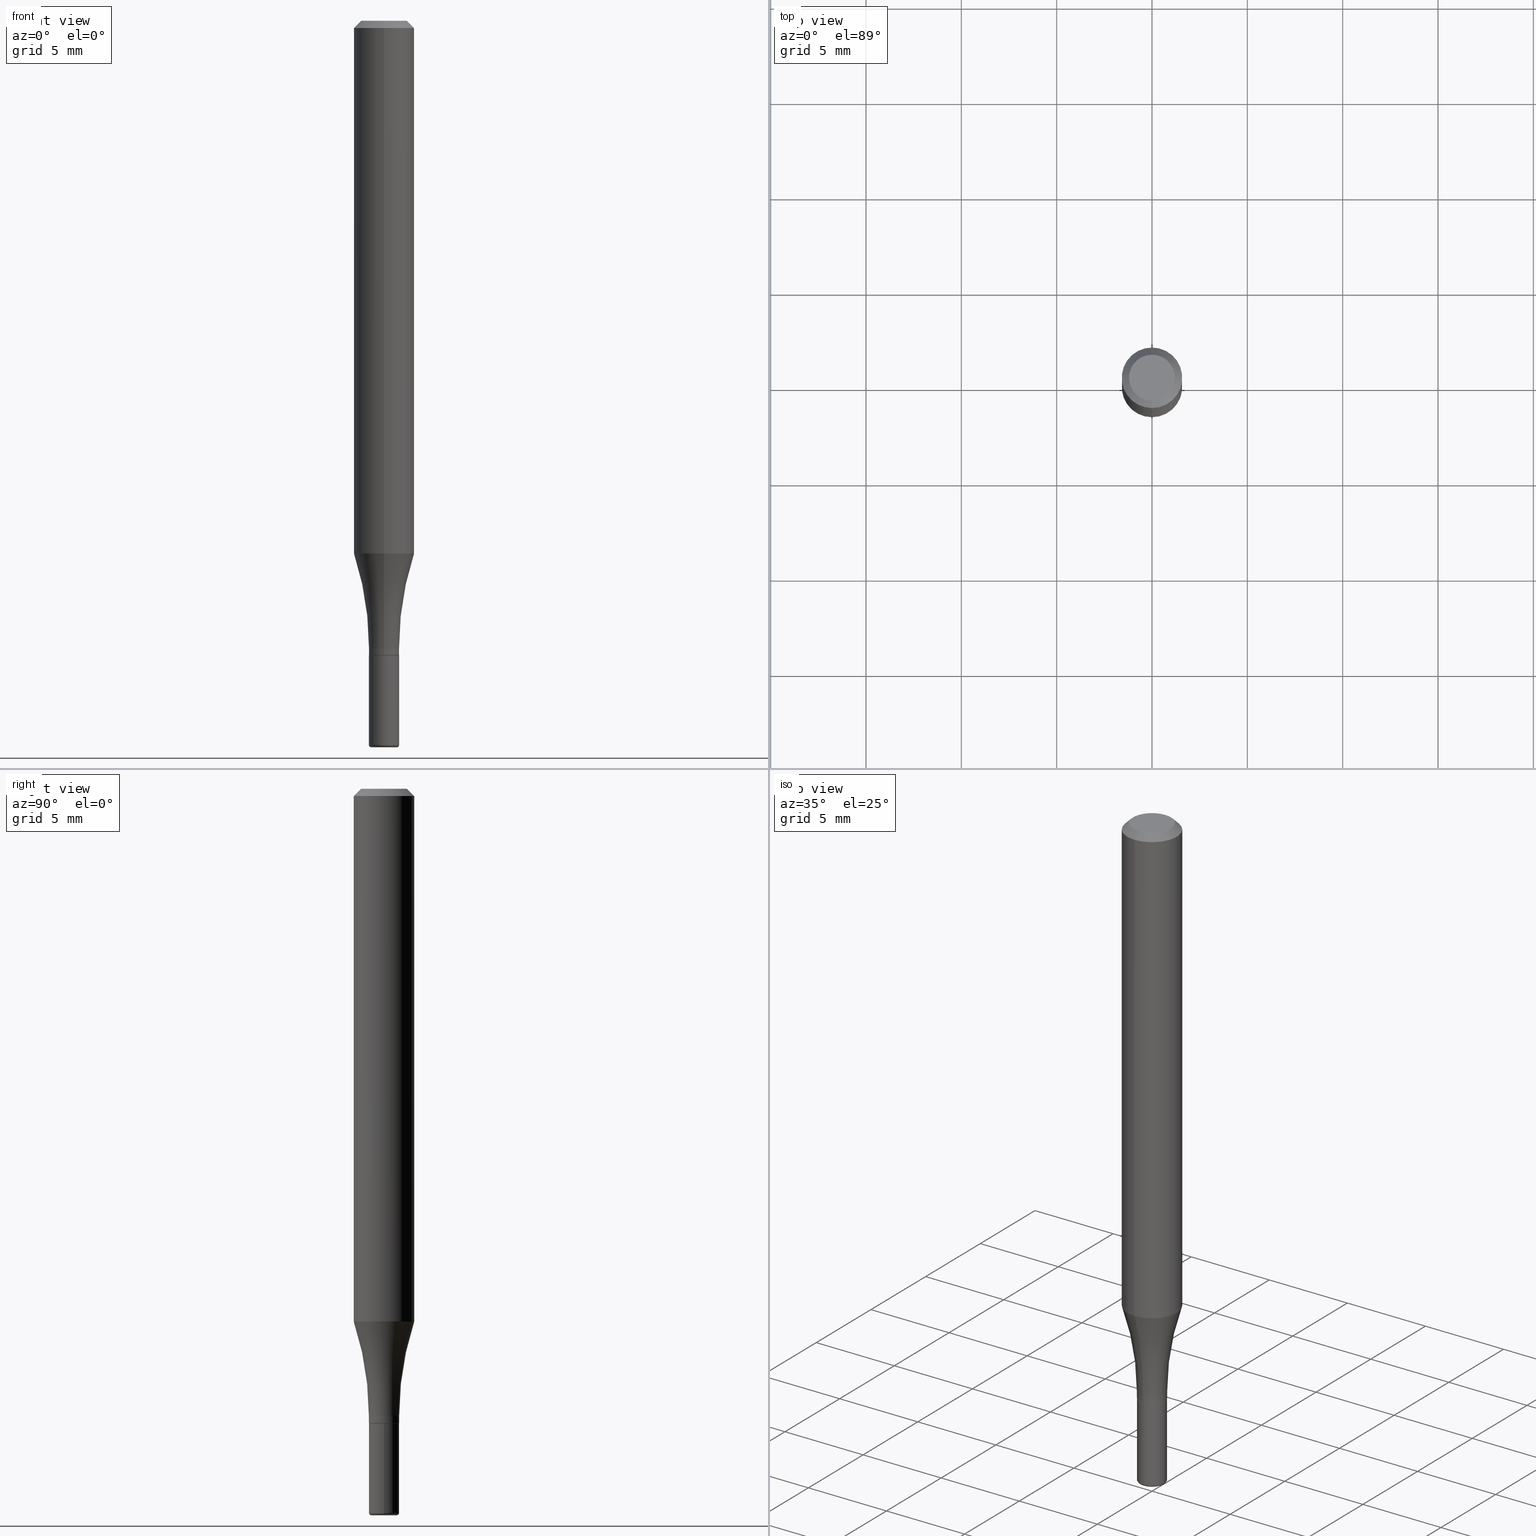
[diagram: canonical four-view strip — front | top / right | iso, engineering-drawing reading convention]
A machine part, canonical four-view strip (front | top / right | iso — engineering-drawing reading convention). The complete STEP part file that produces these views, byte-faithful:
ISO-10303-21;
HEADER;
FILE_DESCRIPTION (( 'STEP AP203' ),
    '1' );
FILE_NAME ('36872.STEP',
    '2024-02-29T19:32:55',
    ( '' ),
    ( '' ),
    'SwSTEP 2.0',
    'SolidWorks 2023',
    '' );
FILE_SCHEMA (( 'CONFIG_CONTROL_DESIGN' ));
ENDSEC;

DATA;
#1 = EDGE_CURVE ( 'NONE', #476, #91, #473, .T. ) ;
#2 = CIRCLE ( 'NONE', #360, 0.004999999999999895153 ) ;
#3 = DIRECTION ( 'NONE',  ( 7.105427357601001859E-15, 1.000000000000000000, -3.491481338843145583E-15 ) ) ;
#4 = EDGE_CURVE ( 'NONE', #116, #347, #269, .T. ) ;
#5 = APPROVAL_ROLE ( '' ) ;
#6 = CARTESIAN_POINT ( 'NONE',  ( 0.000000000000000000, 0.000000000000000000, 0.000000000000000000 ) ) ;
#7 = CARTESIAN_POINT ( 'NONE',  ( -2.147261023388199666E-16, -0.03075000000000447514, -1.310000000000000053 ) ) ;
#8 = APPLICATION_PROTOCOL_DEFINITION ( 'international standard', 'config_control_design', 1994, #433 ) ;
#9 = DIRECTION ( 'NONE',  ( -6.982962677686265922E-15, -1.000000000000000000, 3.497508036328499221E-15 ) ) ;
#10 = CARTESIAN_POINT ( 'NONE',  ( 3.655975865246779122E-29, -5.219764601570503141E-15, -1.495000000000000107 ) ) ;
#11 = VECTOR ( 'NONE', #280, 39.37007874015748143 ) ;
#12 = APPROVAL_PERSON_ORGANIZATION ( #374, #178, #335 ) ;
#13 = APPROVAL_STATUS ( 'not_yet_approved' ) ;
#14 = CARTESIAN_POINT ( 'NONE',  ( 2.685005130172230047E-29, -3.846712573099973362E-15, -1.099843812550049149 ) ) ;
#15 = DIRECTION ( 'NONE',  ( 1.000000000000000000, -6.982962677686264344E-15, 4.883557194083112340E-29 ) ) ;
#16 = MANIFOLD_SOLID_BREP ( 'Body-Move/Copy2[2]', #185 ) ;
#17 = APPROVAL_DATE_TIME ( #259, #178 ) ;
#18 = DIRECTION ( 'NONE',  ( -2.445468806185136597E-29, 3.491481338843145583E-15, 1.000000000000000000 ) ) ;
#19 = CALENDAR_DATE ( 2024, 29, 2 ) ;
#20 = ADVANCED_FACE ( 'NONE', ( #172 ), #196, .T. ) ;
#21 = ORIENTED_EDGE ( 'NONE', *, *, #435, .T. ) ;
#22 = DIRECTION ( 'NONE',  ( 1.000000000000000000, -6.982962677686266711E-15, 4.876176775795936353E-29 ) ) ;
#23 = CALENDAR_DATE ( 2024, 29, 2 ) ;
#24 = CIRCLE ( 'NONE', #458, 0.03124999999999985428 ) ;
#25 = VERTEX_POINT ( 'NONE', #7 ) ;
#26 = DIRECTION ( 'NONE',  ( -6.982962677686265922E-15, -1.000000000000000000, 3.483106191921935554E-15 ) ) ;
#27 = ORIENTED_EDGE ( 'NONE', *, *, #516, .T. ) ;
#28 = CARTESIAN_POINT ( 'NONE',  ( 3.330669073875756569E-16, 0.03124999999999531625, -1.294999999999999707 ) ) ;
#29 = ADVANCED_FACE ( 'NONE', ( #329 ), #78, .T. ) ;
#30 = EDGE_LOOP ( 'NONE', ( #307, #266, #21, #107 ) ) ;
#31 = DIRECTION ( 'NONE',  ( -2.441260385824143346E-29, 3.497508036328499221E-15, 1.000000000000000000 ) ) ;
#32 = TOROIDAL_SURFACE ( 'NONE', #322, 0.02624999999999995740, 0.004999999999999895153 ) ;
#33 = CC_DESIGN_APPROVAL ( #416, ( #82 ) ) ;
#34 = VERTEX_POINT ( 'NONE', #130 ) ;
#35 = PERSON ( 'UNSPECIFIED', 'UNSPECIFIED', 'UNSPECIFIED', ('UNSPECIFIED'), ('UNSPECIFIED'), ('UNSPECIFIED') ) ;
#36 = ORIENTED_EDGE ( 'NONE', *, *, #221, .F. ) ;
#37 = ADVANCED_FACE ( 'NONE', ( #176 ), #398, .T. ) ;
#38 = DIRECTION ( 'NONE',  ( 6.982962677686265922E-15, 1.000000000000000000, -3.497508036328499221E-15 ) ) ;
#39 = CARTESIAN_POINT ( 'NONE',  ( 3.203564136102528897E-29, -4.573840553884520788E-15, -1.310000000000000053 ) ) ;
#40 = CONICAL_SURFACE ( 'NONE', #402, 0.06250000000000000000, 0.7853981633974488341 ) ;
#41 = ORIENTED_EDGE ( 'NONE', *, *, #65, .T. ) ;
#42 = LINE ( 'NONE', #287, #11 ) ;
#43 = EDGE_CURVE ( 'NONE', #390, #25, #466, .T. ) ;
#44 = ORIENTED_EDGE ( 'NONE', *, *, #242, .F. ) ;
#45 = CARTESIAN_POINT ( 'NONE',  ( -2.182175836776631463E-16, -0.03125000000000437150, -1.294999999999999707 ) ) ;
#46 = CARTESIAN_POINT ( 'NONE',  ( 2.220446049250303713E-16, 0.03124999999999987163, -1.092971261352651692E-16 ) ) ;
#47 = AXIS2_PLACEMENT_3D ( 'NONE', #427, #267, #71 ) ;
#48 = APPROVAL_PERSON_ORGANIZATION ( #174, #134, #5 ) ;
#49 = PERSON_AND_ORGANIZATION ( #35, #232 ) ;
#50 = DIRECTION ( 'NONE',  ( -2.441260385824143346E-29, 3.497508036328499221E-15, 1.000000000000000000 ) ) ;
#51 = APPLICATION_PROTOCOL_DEFINITION ( 'international standard', 'config_control_design', 1994, #406 ) ;
#52 = CARTESIAN_POINT ( 'NONE',  ( -4.287811248607203282E-16, -0.06250000000000005551, -0.01499999999999948597 ) ) ;
#53 =( NAMED_UNIT ( * ) PLANE_ANGLE_UNIT ( ) SI_UNIT ( $, .RADIAN. ) );
#54 = DIRECTION ( 'NONE',  ( -2.445468806185136877E-29, 3.491481338843145188E-15, 1.000000000000000000 ) ) ;
#55 = DIRECTION ( 'NONE',  ( 6.982962677686265922E-15, 1.000000000000000000, -3.483106191921935554E-15 ) ) ;
#56 = EDGE_CURVE ( 'NONE', #207, #397, #411, .T. ) ;
#57 = CIRCLE ( 'NONE', #387, 0.03124999999999985428 ) ;
#58 = CARTESIAN_POINT ( 'NONE',  ( 0.000000000000000000, 0.000000000000000000, 0.000000000000000000 ) ) ;
#59 = CARTESIAN_POINT ( 'NONE',  ( 3.668203209277704335E-29, -5.237222008264717388E-15, -1.499999999999999778 ) ) ;
#60 = SHAPE_DEFINITION_REPRESENTATION ( #206, #460 ) ;
#61 = CARTESIAN_POINT ( 'NONE',  ( 4.440892098500627148E-16, 0.06250000000000001388, -2.185942522705312752E-16 ) ) ;
#62 = EDGE_CURVE ( 'NONE', #207, #150, #443, .T. ) ;
#63 = FACE_OUTER_BOUND ( 'NONE', #165, .T. ) ;
#64 = AXIS2_PLACEMENT_3D ( 'NONE', #6, #136, #22 ) ;
#65 = EDGE_CURVE ( 'NONE', #284, #34, #73, .T. ) ;
#66 = ORIENTED_EDGE ( 'NONE', *, *, #191, .F. ) ;
#67 = DIRECTION ( 'NONE',  ( -2.441260385824143346E-29, 3.497508036328499615E-15, 1.000000000000000000 ) ) ;
#68 = PERSON_AND_ORGANIZATION_ROLE ( 'classification_officer' ) ;
#69 = VERTEX_POINT ( 'NONE', #28 ) ;
#70 = DIRECTION ( 'NONE',  ( 1.000000000000000000, -6.982962677686284854E-15, 0.000000000000000000 ) ) ;
#71 = DIRECTION ( 'NONE',  ( 1.000000000000000000, -6.982962677686266711E-15, 4.876176775795936353E-29 ) ) ;
#72 = ORIENTED_EDGE ( 'NONE', *, *, #346, .T. ) ;
#73 = CIRCLE ( 'NONE', #407, 0.06250000000000002776 ) ;
#74 = ADVANCED_FACE ( 'NONE', ( #63 ), #308, .T. ) ;
#75 = LINE ( 'NONE', #83, #237 ) ;
#76 = ORIENTED_EDGE ( 'NONE', *, *, #65, .F. ) ;
#77 = DIRECTION ( 'NONE',  ( -2.441260385824143346E-29, 3.497508036328499615E-15, 1.000000000000000000 ) ) ;
#78 = CONICAL_SURFACE ( 'NONE', #84, 0.03074999999999989547, 0.7853981633972775267 ) ;
#79 = ORIENTED_EDGE ( 'NONE', *, *, #379, .T. ) ;
#80 = DIRECTION ( 'NONE',  ( -6.982962677686265922E-15, -1.000000000000000000, 0.000000000000000000 ) ) ;
#81 = CC_DESIGN_PERSON_AND_ORGANIZATION_ASSIGNMENT ( #49, #208, ( #343 ) ) ;
#82 = SECURITY_CLASSIFICATION ( '', '', #152 ) ;
#83 = CARTESIAN_POINT ( 'NONE',  ( -0.03124999999999989592, 2.220446049250305685E-16, -1.537167215704652977E-30 ) ) ;
#84 = AXIS2_PLACEMENT_3D ( 'NONE', #215, #378, #262 ) ;
#85 = EDGE_LOOP ( 'NONE', ( #464, #27, #66, #507 ) ) ;
#86 = FACE_OUTER_BOUND ( 'NONE', #155, .T. ) ;
#87 = APPROVAL_DATE_TIME ( #338, #134 ) ;
#88 = PLANE ( 'NONE',  #131 ) ;
#89 = CIRCLE ( 'NONE', #186, 0.03124999999999984734 ) ;
#90 = CC_DESIGN_DATE_AND_TIME_ASSIGNMENT ( #305, #101, ( #82 ) ) ;
#91 = VERTEX_POINT ( 'NONE', #352 ) ;
#92 = CARTESIAN_POINT ( 'NONE',  ( 3.840629472727447874E-16, 0.04750000000000000749, 1.073394357713768884E-16 ) ) ;
#93 = DIRECTION ( 'NONE',  ( -2.441260385824143346E-29, 3.497508036328499615E-15, 1.000000000000000000 ) ) ;
#94 = ORIENTED_EDGE ( 'NONE', *, *, #425, .T. ) ;
#95 = CALENDAR_DATE ( 2024, 29, 2 ) ;
#96 = FACE_OUTER_BOUND ( 'NONE', #189, .T. ) ;
#97 = DIRECTION ( 'NONE',  ( -2.445468806185136597E-29, 3.491481338843145583E-15, 1.000000000000000000 ) ) ;
#98 = CIRCLE ( 'NONE', #432, 0.03074999999999989547 ) ;
#99 = AXIS2_PLACEMENT_3D ( 'NONE', #199, #158, #161 ) ;
#100 = LINE ( 'NONE', #61, #148 ) ;
#101 = DATE_TIME_ROLE ( 'classification_date' ) ;
#102 = ORIENTED_EDGE ( 'NONE', *, *, #516, .F. ) ;
#103 = DIRECTION ( 'NONE',  ( -6.982962677686265922E-15, -1.000000000000000000, 0.000000000000000000 ) ) ;
#104 = EDGE_CURVE ( 'NONE', #284, #312, #503, .T. ) ;
#105 = ORIENTED_EDGE ( 'NONE', *, *, #278, .T. ) ;
#106 = CARTESIAN_POINT ( 'NONE',  ( -4.364351673553917187E-16, -0.06250000000000001388, 2.185942522705312752E-16 ) ) ;
#107 = ORIENTED_EDGE ( 'NONE', *, *, #118, .T. ) ;
#108 = VECTOR ( 'NONE', #50, 39.37007874015748143 ) ;
#109 = EDGE_LOOP ( 'NONE', ( #361, #94 ) ) ;
#110 = CARTESIAN_POINT ( 'NONE',  ( -4.582569257231578608E-15, -0.6562500000000043299, -1.294999999999997486 ) ) ;
#111 = ORIENTED_EDGE ( 'NONE', *, *, #350, .F. ) ;
#112 = CARTESIAN_POINT ( 'NONE',  ( 3.161432199642265108E-29, -4.529272907045406483E-15, -1.294999999999999707 ) ) ;
#113 = AXIS2_PLACEMENT_3D ( 'NONE', #144, #273, #302 ) ;
#114 = CC_DESIGN_SECURITY_CLASSIFICATION ( #82, ( #343 ) ) ;
#115 = EDGE_CURVE ( 'NONE', #69, #512, #366, .T. ) ;
#116 = VERTEX_POINT ( 'NONE', #391 ) ;
#117 = CARTESIAN_POINT ( 'NONE',  ( -2.182175836776631216E-16, -0.03125000000000447559, -1.309499999999999886 ) ) ;
#118 = EDGE_CURVE ( 'NONE', #382, #312, #276, .T. ) ;
#119 = DIRECTION ( 'NONE',  ( 2.441260385824143346E-29, -3.497508036328499615E-15, -1.000000000000000000 ) ) ;
#120 = ORIENTED_EDGE ( 'NONE', *, *, #173, .F. ) ;
#121 = CARTESIAN_POINT ( 'NONE',  ( 0.03124999999999994102, -4.792058137562216623E-15, -1.310000000000000053 ) ) ;
#122 = AXIS2_PLACEMENT_3D ( 'NONE', #14, #487, #212 ) ;
#123 = VECTOR ( 'NONE', #483, 39.37007874015748143 ) ;
#124 = ORIENTED_EDGE ( 'NONE', *, *, #56, .T. ) ;
#125 = CARTESIAN_POINT ( 'NONE',  ( 3.661890578736142327E-31, -5.246262054492645441E-17, -0.01499999999999970281 ) ) ;
#126 = DIRECTION ( 'NONE',  ( -2.441260385824143346E-29, 3.497508036328499615E-15, 1.000000000000000000 ) ) ;
#127 = LINE ( 'NONE', #339, #157 ) ;
#128 = PERSON_AND_ORGANIZATION ( #35, #232 ) ;
#129 = DIRECTION ( 'NONE',  ( -2.438088387897960049E-29, 3.491481338843145188E-15, 1.000000000000000000 ) ) ;
#130 = CARTESIAN_POINT ( 'NONE',  ( 4.440892098500899305E-16, 0.06249999999999618361, -1.099843812550049371 ) ) ;
#131 = AXIS2_PLACEMENT_3D ( 'NONE', #457, #210, #9 ) ;
#132 = ORIENTED_EDGE ( 'NONE', *, *, #56, .F. ) ;
#133 = FACE_OUTER_BOUND ( 'NONE', #400, .T. ) ;
#134 = APPROVAL ( #331, 'UNSPECIFIED' ) ;
#135 = COORDINATED_UNIVERSAL_TIME_OFFSET ( 5, 0, .BEHIND. ) ;
#136 = DIRECTION ( 'NONE',  ( -2.445468806185136597E-29, 3.491481338843145583E-15, 1.000000000000000000 ) ) ;
#137 = DIRECTION ( 'NONE',  ( -2.445468806185136597E-29, 3.491481338843145583E-15, 1.000000000000000000 ) ) ;
#138 = DIRECTION ( 'NONE',  ( -2.441260385824143346E-29, 3.497508036328499615E-15, 1.000000000000000000 ) ) ;
#139 = VECTOR ( 'NONE', #203, 39.37007874015748143 ) ;
#140 = ORIENTED_EDGE ( 'NONE', *, *, #211, .T. ) ;
#141 = DIRECTION ( 'NONE',  ( -2.445468806185136597E-29, 3.491481338843145583E-15, 1.000000000000000000 ) ) ;
#142 = EDGE_LOOP ( 'NONE', ( #102, #79, #72, #451 ) ) ;
#143 = ORIENTED_EDGE ( 'NONE', *, *, #168, .F. ) ;
#144 = CARTESIAN_POINT ( 'NONE',  ( 4.662936703425687446E-15, 0.6562499999999953371, -1.295000000000001927 ) ) ;
#145 = ORIENTED_EDGE ( 'NONE', *, *, #506, .F. ) ;
#146 = CARTESIAN_POINT ( 'NONE',  ( 3.655975865246779683E-29, -5.219764601570503930E-15, -1.495000000000000329 ) ) ;
#147 = APPROVAL_DATE_TIME ( #310, #416 ) ;
#148 = VECTOR ( 'NONE', #219, 39.37007874015748143 ) ;
#149 = AXIS2_PLACEMENT_3D ( 'NONE', #236, #364, #445 ) ;
#150 = VERTEX_POINT ( 'NONE', #229 ) ;
#151 = LINE ( 'NONE', #424, #224 ) ;
#152 = SECURITY_CLASSIFICATION_LEVEL ( 'unclassified' ) ;
#153 = DIMENSIONAL_EXPONENTS ( 1.000000000000000000, 0.000000000000000000, 0.000000000000000000, 0.000000000000000000, 0.000000000000000000, 0.000000000000000000, 0.000000000000000000 ) ;
#154 = CC_DESIGN_PERSON_AND_ORGANIZATION_ASSIGNMENT ( #246, #409, ( #343 ) ) ;
#155 = EDGE_LOOP ( 'NONE', ( #140, #201 ) ) ;
#156 = EDGE_CURVE ( 'NONE', #230, #150, #24, .T. ) ;
#157 = VECTOR ( 'NONE', #54, 39.37007874015748143 ) ;
#158 = DIRECTION ( 'NONE',  ( -2.441260385824143346E-29, 3.497508036328499615E-15, 1.000000000000000000 ) ) ;
#159 = CC_DESIGN_DATE_AND_TIME_ASSIGNMENT ( #298, #213, ( #363 ) ) ;
#160 = ORIENTED_EDGE ( 'NONE', *, *, #430, .F. ) ;
#161 = DIRECTION ( 'NONE',  ( -6.982962677686266711E-15, -1.000000000000000000, 3.497508036328499615E-15 ) ) ;
#162 = ORIENTED_EDGE ( 'NONE', *, *, #306, .T. ) ;
#163 = DIRECTION ( 'NONE',  ( 2.441260385824143346E-29, -3.497508036328499221E-15, -1.000000000000000000 ) ) ;
#164 = EDGE_CURVE ( 'NONE', #25, #390, #98, .T. ) ;
#165 = EDGE_LOOP ( 'NONE', ( #183, #243, #423, #301 ) ) ;
#166 = FACE_OUTER_BOUND ( 'NONE', #482, .T. ) ;
#167 = CIRCLE ( 'NONE', #490, 0.03124999999999989592 ) ;
#168 = EDGE_CURVE ( 'NONE', #284, #512, #205, .T. ) ;
#169 =( LENGTH_UNIT ( ) NAMED_UNIT ( * ) SI_UNIT ( $, .METRE. ) );
#170 = EDGE_CURVE ( 'NONE', #34, #69, #340, .T. ) ;
#171 = FACE_OUTER_BOUND ( 'NONE', #318, .T. ) ;
#172 = FACE_OUTER_BOUND ( 'NONE', #30, .T. ) ;
#173 = EDGE_CURVE ( 'NONE', #390, #344, #151, .T. ) ;
#174 = PERSON_AND_ORGANIZATION ( #35, #232 ) ;
#175 = FACE_OUTER_BOUND ( 'NONE', #85, .T. ) ;
#176 = FACE_OUTER_BOUND ( 'NONE', #265, .T. ) ;
#177 = AXIS2_PLACEMENT_3D ( 'NONE', #39, #520, #233 ) ;
#178 = APPROVAL ( #13, 'UNSPECIFIED' ) ;
#179 = LINE ( 'NONE', #328, #420 ) ;
#180 = DIRECTION ( 'NONE',  ( -2.441260385824143346E-29, 3.497508036328499615E-15, 1.000000000000000000 ) ) ;
#181 = CARTESIAN_POINT ( 'NONE',  ( 3.166882104009751018E-29, -4.521468333801872526E-15, -1.294999999999999707 ) ) ;
#182 = APPROVAL_ROLE ( '' ) ;
#183 = ORIENTED_EDGE ( 'NONE', *, *, #221, .T. ) ;
#184 = FACE_OUTER_BOUND ( 'NONE', #314, .T. ) ;
#185 = CLOSED_SHELL ( 'NONE', ( #209, #401, #359, #357, #471, #258, #452, #29, #356, #437, #20, #446 ) ) ;
#186 = AXIS2_PLACEMENT_3D ( 'NONE', #112, #428, #103 ) ;
#187 = EDGE_LOOP ( 'NONE', ( #41, #438, #145, #234 ) ) ;
#188 = DIRECTION ( 'NONE',  ( 1.000000000000000000, -6.982962677686264344E-15, 0.000000000000000000 ) ) ;
#189 = EDGE_LOOP ( 'NONE', ( #404, #355, #279, #394 ) ) ;
#190 = CARTESIAN_POINT ( 'NONE',  ( 2.685005130172230047E-29, -3.846712573099973362E-15, -1.099843812550049149 ) ) ;
#191 = EDGE_CURVE ( 'NONE', #512, #69, #89, .T. ) ;
#192 = EDGE_LOOP ( 'NONE', ( #111, #504, #518, #222 ) ) ;
#193 = CARTESIAN_POINT ( 'NONE',  ( 3.198051105429627293E-29, -4.581735527590334626E-15, -1.310000000000000053 ) ) ;
#194 = ORIENTED_EDGE ( 'NONE', *, *, #373, .T. ) ;
#195 = VECTOR ( 'NONE', #31, 39.37007874015748143 ) ;
#196 = CONICAL_SURFACE ( 'NONE', #442, 0.06250000000000000000, 0.7853981633974488341 ) ;
#197 = MANIFOLD_SOLID_BREP ( 'Body-Move/Copy2[1]', #293 ) ;
#198 = APPROVAL_PERSON_ORGANIZATION ( #509, #416, #182 ) ;
#199 = CARTESIAN_POINT ( 'NONE',  ( 3.166882104009751018E-29, -4.521468333801872526E-15, -1.294999999999999707 ) ) ;
#200 = CARTESIAN_POINT ( 'NONE',  ( 2.202682480856618956E-16, 0.03074999999999531580, -1.310000000000000053 ) ) ;
#201 = ORIENTED_EDGE ( 'NONE', *, *, #4, .T. ) ;
#202 = CARTESIAN_POINT ( 'NONE',  ( 3.316907271900976589E-16, 0.04750000000000000749, -2.939609797711345468E-17 ) ) ;
#203 = DIRECTION ( 'NONE',  ( -2.441260385824143346E-29, 3.497508036328499221E-15, 1.000000000000000000 ) ) ;
#204 = EDGE_LOOP ( 'NONE', ( #462, #351, #467, #320 ) ) ;
#205 = CIRCLE ( 'NONE', #316, 0.6249999999999998890 ) ;
#206 = PRODUCT_DEFINITION_SHAPE ( 'NONE', 'NONE',  #363 ) ;
#207 = VERTEX_POINT ( 'NONE', #472 ) ;
#208 = PERSON_AND_ORGANIZATION_ROLE ( 'design_supplier' ) ;
#209 = ADVANCED_FACE ( 'NONE', ( #274 ), #505, .T. ) ;
#210 = DIRECTION ( 'NONE',  ( -2.441260385824143346E-29, 3.497508036328499221E-15, 1.000000000000000000 ) ) ;
#211 = EDGE_CURVE ( 'NONE', #347, #116, #474, .T. ) ;
#212 = DIRECTION ( 'NONE',  ( -6.982962677686265922E-15, -1.000000000000000000, 4.370956789862819572E-15 ) ) ;
#213 = DATE_TIME_ROLE ( 'creation_date' ) ;
#214 = DIRECTION ( 'NONE',  ( -6.982962677686265133E-15, -1.000000000000000000, 3.497508036328499221E-15 ) ) ;
#215 = CARTESIAN_POINT ( 'NONE',  ( 3.198051105429627293E-29, -4.581735527590334626E-15, -1.310000000000000053 ) ) ;
#216 = AXIS2_PLACEMENT_3D ( 'NONE', #241, #405, #319 ) ;
#217 =( NAMED_UNIT ( * ) SI_UNIT ( $, .STERADIAN. ) SOLID_ANGLE_UNIT ( ) );
#218 = DIRECTION ( 'NONE',  ( 1.000000000000000000, -6.982962677686265922E-15, 4.876176775795935793E-29 ) ) ;
#219 = DIRECTION ( 'NONE',  ( -2.441260385824143346E-29, 3.497508036328499221E-15, 1.000000000000000000 ) ) ;
#220 = DIRECTION ( 'NONE',  ( -6.982962677686265133E-15, -1.000000000000000000, 3.497508036328499221E-15 ) ) ;
#221 = EDGE_CURVE ( 'NONE', #150, #230, #57, .T. ) ;
#222 = ORIENTED_EDGE ( 'NONE', *, *, #118, .F. ) ;
#223 = DIRECTION ( 'NONE',  ( -2.441260385824143346E-29, 3.497508036328499615E-15, 1.000000000000000000 ) ) ;
#224 = VECTOR ( 'NONE', #463, 39.37007874015748143 ) ;
#225 = ORIENTED_EDGE ( 'NONE', *, *, #485, .T. ) ;
#226 = DIRECTION ( 'NONE',  ( -6.982962677686265922E-15, -1.000000000000000000, 0.000000000000000000 ) ) ;
#227 = ORIENTED_EDGE ( 'NONE', *, *, #156, .T. ) ;
#228 = DIRECTION ( 'NONE',  ( -6.982962677686266711E-15, -1.000000000000000000, 3.491481338843145583E-15 ) ) ;
#229 = CARTESIAN_POINT ( 'NONE',  ( 0.03124999999999985428, -5.437982185248198976E-15, -1.495000000000000329 ) ) ;
#230 = VERTEX_POINT ( 'NONE', #383 ) ;
#231 = AXIS2_PLACEMENT_3D ( 'NONE', #249, #410, #377 ) ;
#232 = ORGANIZATION ( 'UNSPECIFIED', 'UNSPECIFIED', '' ) ;
#233 = DIRECTION ( 'NONE',  ( 1.000000000000000000, -6.982962677686276177E-15, 0.000000000000000000 ) ) ;
#234 = ORIENTED_EDGE ( 'NONE', *, *, #104, .F. ) ;
#235 = CC_DESIGN_PERSON_AND_ORGANIZATION_ASSIGNMENT ( #385, #68, ( #82 ) ) ;
#236 = CARTESIAN_POINT ( 'NONE',  ( 0.000000000000000000, 0.000000000000000000, 0.000000000000000000 ) ) ;
#237 = VECTOR ( 'NONE', #403, 39.37007874015748143 ) ;
#238 = CONICAL_SURFACE ( 'NONE', #395, 0.03074999999999989547, 0.7853981633972775267 ) ;
#239 = DIRECTION ( 'NONE',  ( -2.441260385824143346E-29, 3.497508036328499615E-15, 1.000000000000000000 ) ) ;
#240 = EDGE_CURVE ( 'NONE', #397, #207, #448, .T. ) ;
#241 = CARTESIAN_POINT ( 'NONE',  ( 3.661890578736142327E-31, -5.246262054492645441E-17, -0.01499999999999970281 ) ) ;
#242 = EDGE_CURVE ( 'NONE', #34, #284, #353, .T. ) ;
#243 = ORIENTED_EDGE ( 'NONE', *, *, #430, .T. ) ;
#244 = CYLINDRICAL_SURFACE ( 'NONE', #149, 0.03124999999999987163 ) ;
#245 = ORIENTED_EDGE ( 'NONE', *, *, #62, .F. ) ;
#246 = PERSON_AND_ORGANIZATION ( #35, #232 ) ;
#247 = AXIS2_PLACEMENT_3D ( 'NONE', #493, #138, #220 ) ;
#248 = AXIS2_PLACEMENT_3D ( 'NONE', #429, #304, #465 ) ;
#249 = CARTESIAN_POINT ( 'NONE',  ( 2.182175836777274138E-16, 0.03124999999999536482, -1.310000000000000053 ) ) ;
#250 = EDGE_LOOP ( 'NONE', ( #44, #281, #431, #143 ) ) ;
#251 = ADVANCED_FACE ( 'NONE', ( #171 ), #295, .F. ) ;
#252 = DIRECTION ( 'NONE',  ( 0.000000000000000000, 0.000000000000000000, 1.000000000000000000 ) ) ;
#253 = FACE_OUTER_BOUND ( 'NONE', #502, .T. ) ;
#254 = EDGE_LOOP ( 'NONE', ( #120, #271, #225, #440 ) ) ;
#255 = PERSON_AND_ORGANIZATION_ROLE ( 'creator' ) ;
#256 = DIRECTION ( 'NONE',  ( -2.441260385824143346E-29, 3.497508036328499615E-15, 1.000000000000000000 ) ) ;
#257 = DIRECTION ( 'NONE',  ( -2.445468806185136597E-29, 3.491481338843145583E-15, 1.000000000000000000 ) ) ;
#258 = ADVANCED_FACE ( 'NONE', ( #133 ), #294, .F. ) ;
#259 = DATE_AND_TIME ( #456, #375 ) ;
#260 = AXIS2_PLACEMENT_3D ( 'NONE', #388, #223, #26 ) ;
#261 = CARTESIAN_POINT ( 'NONE',  ( 3.198051105429627293E-29, -4.581735527590334626E-15, -1.310000000000000053 ) ) ;
#262 = DIRECTION ( 'NONE',  ( -6.982962677686265922E-15, -1.000000000000000000, 0.000000000000000000 ) ) ;
#263 = CIRCLE ( 'NONE', #324, 0.03124999999999989592 ) ;
#264 = DIRECTION ( 'NONE',  ( 1.000000000000000000, -6.982962677686263555E-15, 0.000000000000000000 ) ) ;
#265 = EDGE_LOOP ( 'NONE', ( #124, #194, #36, #245 ) ) ;
#266 = ORIENTED_EDGE ( 'NONE', *, *, #211, .F. ) ;
#267 = DIRECTION ( 'NONE',  ( -2.445468806185136597E-29, 3.491481338843145583E-15, 1.000000000000000000 ) ) ;
#268 = CARTESIAN_POINT ( 'NONE',  ( -6.676140837494191808E-45, 9.564672562740232755E-31, 2.734710674969806246E-16 ) ) ;
#269 = CIRCLE ( 'NONE', #247, 0.04750000000000000749 ) ;
#270 = CIRCLE ( 'NONE', #177, 0.03124999999999994102 ) ;
#271 = ORIENTED_EDGE ( 'NONE', *, *, #43, .T. ) ;
#272 = CC_DESIGN_PERSON_AND_ORGANIZATION_ASSIGNMENT ( #419, #255, ( #363 ) ) ;
#273 = DIRECTION ( 'NONE',  ( 1.000000000000000000, -7.105427357601001070E-15, 4.926389314299930769E-29 ) ) ;
#274 = FACE_OUTER_BOUND ( 'NONE', #187, .T. ) ;
#275 = ORIENTED_EDGE ( 'NONE', *, *, #170, .F. ) ;
#276 = CIRCLE ( 'NONE', #260, 0.06250000000000000000 ) ;
#277 = CC_DESIGN_APPROVAL ( #134, ( #363 ) ) ;
#278 = EDGE_CURVE ( 'NONE', #150, #476, #127, .T. ) ;
#279 = ORIENTED_EDGE ( 'NONE', *, *, #510, .F. ) ;
#280 = DIRECTION ( 'NONE',  ( 4.937700262164550409E-15, 0.7071067811865454633, -0.7071067811865495711 ) ) ;
#281 = ORIENTED_EDGE ( 'NONE', *, *, #170, .T. ) ;
#282 = DIRECTION ( 'NONE',  ( 6.982962677686265922E-15, 1.000000000000000000, -3.483106191921935554E-15 ) ) ;
#283 = AXIS2_PLACEMENT_3D ( 'NONE', #496, #380, #499 ) ;
#284 = VERTEX_POINT ( 'NONE', #291 ) ;
#285 = AXIS2_PLACEMENT_3D ( 'NONE', #515, #478, #368 ) ;
#286 = CARTESIAN_POINT ( 'NONE',  ( -0.02624999999999995740, -5.033247133433476874E-15, -1.495000000000000107 ) ) ;
#287 = CARTESIAN_POINT ( 'NONE',  ( 4.364351673553919652E-16, 0.06249999999999995143, -0.01499999999999992138 ) ) ;
#288 = ADVANCED_FACE ( 'NONE', ( #369 ), #422, .F. ) ;
#289 = PRODUCT ( '36872', '36872', '', ( #453 ) ) ;
#290 = DIRECTION ( 'NONE',  ( -6.982962677686265133E-15, -1.000000000000000000, 0.000000000000000000 ) ) ;
#291 = CARTESIAN_POINT ( 'NONE',  ( -4.364351673553650947E-16, -0.06250000000000388578, -1.099843812550049149 ) ) ;
#292 = CALENDAR_DATE ( 2024, 29, 2 ) ;
#293 = CLOSED_SHELL ( 'NONE', ( #37, #74, #288, #342, #337, #251 ) ) ;
#294 = TOROIDAL_SURFACE ( 'NONE', #479, 0.6562499999999998890, 0.6250000000000000000 ) ;
#295 = PLANE ( 'NONE',  #469 ) ;
#296 = DIRECTION ( 'NONE',  ( 1.000000000000000000, 0.000000000000000000, 0.000000000000000000 ) ) ;
#297 = DIRECTION ( 'NONE',  ( -6.982962677686266711E-15, -1.000000000000000000, 3.497508036328499615E-15 ) ) ;
#298 = DATE_AND_TIME ( #95, #513 ) ;
#299 = LINE ( 'NONE', #450, #108 ) ;
#300 = DIRECTION ( 'NONE',  ( 1.000000000000000000, -6.982962677686264344E-15, 4.883557194083112340E-29 ) ) ;
#301 = ORIENTED_EDGE ( 'NONE', *, *, #278, .F. ) ;
#302 = DIRECTION ( 'NONE',  ( 7.105427357601000281E-15, 1.000000000000000000, 0.000000000000000000 ) ) ;
#303 = ORIENTED_EDGE ( 'NONE', *, *, #425, .F. ) ;
#304 = DIRECTION ( 'NONE',  ( -2.441260385824143346E-29, 3.497508036328499615E-15, 1.000000000000000000 ) ) ;
#305 = DATE_AND_TIME ( #19, #459 ) ;
#306 = EDGE_CURVE ( 'NONE', #116, #312, #179, .T. ) ;
#307 = ORIENTED_EDGE ( 'NONE', *, *, #306, .F. ) ;
#308 = CYLINDRICAL_SURFACE ( 'NONE', #47, 0.03124999999999989592 ) ;
#309 = AXIS2_PLACEMENT_3D ( 'NONE', #202, #163, #38 ) ;
#310 = DATE_AND_TIME ( #23, #480 ) ;
#311 = CC_DESIGN_APPROVAL ( #178, ( #343 ) ) ;
#312 = VERTEX_POINT ( 'NONE', #52 ) ;
#313 = DIRECTION ( 'NONE',  ( -2.441260385824143346E-29, 3.497508036328499615E-15, 1.000000000000000000 ) ) ;
#314 = EDGE_LOOP ( 'NONE', ( #323, #412 ) ) ;
#315 = AXIS2_PLACEMENT_3D ( 'NONE', #10, #97, #15 ) ;
#316 = AXIS2_PLACEMENT_3D ( 'NONE', #110, #345, #514 ) ;
#317 = LINE ( 'NONE', #475, #123 ) ;
#318 = EDGE_LOOP ( 'NONE', ( #132, #367 ) ) ;
#319 = DIRECTION ( 'NONE',  ( -6.982962677686265922E-15, -1.000000000000000000, 3.483106191921935554E-15 ) ) ;
#320 = ORIENTED_EDGE ( 'NONE', *, *, #156, .F. ) ;
#321 = FACE_OUTER_BOUND ( 'NONE', #192, .T. ) ;
#322 = AXIS2_PLACEMENT_3D ( 'NONE', #495, #137, #300 ) ;
#323 = ORIENTED_EDGE ( 'NONE', *, *, #164, .F. ) ;
#324 = AXIS2_PLACEMENT_3D ( 'NONE', #439, #77, #365 ) ;
#325 = DIRECTION ( 'NONE',  ( -1.000000000000000000, 7.105427357601074434E-15, 0.000000000000000000 ) ) ;
#326 = UNCERTAINTY_MEASURE_WITH_UNIT (LENGTH_MEASURE( 1.000000000000000082E-05 ), #370, 'distance_accuracy_value', 'NONE');
#327 = ORIENTED_EDGE ( 'NONE', *, *, #4, .F. ) ;
#328 = CARTESIAN_POINT ( 'NONE',  ( -4.287811248607203282E-16, -0.06250000000000005551, -0.01499999999999948597 ) ) ;
#329 = FACE_OUTER_BOUND ( 'NONE', #254, .T. ) ;
#330 = ORIENTED_EDGE ( 'NONE', *, *, #506, .T. ) ;
#331 = APPROVAL_STATUS ( 'not_yet_approved' ) ;
#332 = AXIS2_PLACEMENT_3D ( 'NONE', #341, #348, #508 ) ;
#333 = CARTESIAN_POINT ( 'NONE',  ( 0.000000000000000000, 0.000000000000000000, 0.000000000000000000 ) ) ;
#334 = DIRECTION ( 'NONE',  ( -6.982962677686265922E-15, -1.000000000000000000, 0.000000000000000000 ) ) ;
#335 = APPROVAL_ROLE ( '' ) ;
#336 = DIRECTION ( 'NONE',  ( -4.851104656540966641E-15, -0.7071067811865503483, -0.7071067811865446862 ) ) ;
#337 = ADVANCED_FACE ( 'NONE', ( #497 ), #32, .T. ) ;
#338 = DATE_AND_TIME ( #292, #434 ) ;
#339 = CARTESIAN_POINT ( 'NONE',  ( 0.03124999999999989592, -2.182175836776951198E-16, 1.523805242436225031E-30 ) ) ;
#340 = CIRCLE ( 'NONE', #113, 0.6250000000000001110 ) ;
#341 = CARTESIAN_POINT ( 'NONE',  ( 3.161432199642265108E-29, -4.529272907045406483E-15, -1.294999999999999707 ) ) ;
#342 = ADVANCED_FACE ( 'NONE', ( #253 ), #461, .T. ) ;
#343 = PRODUCT_DEFINITION_FORMATION_WITH_SPECIFIED_SOURCE ( 'ANY', '', #289, .NOT_KNOWN. ) ;
#344 = VERTEX_POINT ( 'NONE', #484 ) ;
#345 = DIRECTION ( 'NONE',  ( -1.000000000000000000, 6.982962677686265922E-15, -4.883557194083112340E-29 ) ) ;
#346 = EDGE_CURVE ( 'NONE', #415, #512, #299, .T. ) ;
#347 = VERTEX_POINT ( 'NONE', #92 ) ;
#348 = DIRECTION ( 'NONE',  ( -2.441260385824143346E-29, 3.497508036328499615E-15, 1.000000000000000000 ) ) ;
#349 = APPROVAL_STATUS ( 'not_yet_approved' ) ;
#350 = EDGE_CURVE ( 'NONE', #34, #382, #100, .T. ) ;
#351 = ORIENTED_EDGE ( 'NONE', *, *, #240, .T. ) ;
#352 = CARTESIAN_POINT ( 'NONE',  ( -0.03124999999999994102, -4.674757972802482629E-15, -1.310000000000000053 ) ) ;
#353 = CIRCLE ( 'NONE', #122, 0.06250000000000002776 ) ;
#354 = TOROIDAL_SURFACE ( 'NONE', #99, 0.6562499999999998890, 0.6250000000000000000 ) ;
#355 = ORIENTED_EDGE ( 'NONE', *, *, #173, .T. ) ;
#356 = ADVANCED_FACE ( 'NONE', ( #184 ), #88, .F. ) ;
#357 = ADVANCED_FACE ( 'NONE', ( #175 ), #454, .T. ) ;
#358 = CYLINDRICAL_SURFACE ( 'NONE', #285, 0.06250000000000001388 ) ;
#359 = ADVANCED_FACE ( 'NONE', ( #96 ), #238, .T. ) ;
#360 = AXIS2_PLACEMENT_3D ( 'NONE', #286, #3, #325 ) ;
#361 = ORIENTED_EDGE ( 'NONE', *, *, #1, .T. ) ;
#362 = CARTESIAN_POINT ( 'NONE',  ( 3.196830475236715351E-29, -4.579986773572169145E-15, -1.309499999999999886 ) ) ;
#363 = PRODUCT_DEFINITION ( 'UNKNOWN', '', #343, #436 ) ;
#364 = DIRECTION ( 'NONE',  ( -2.441260385824143346E-29, 3.497508036328499615E-15, 1.000000000000000000 ) ) ;
#365 = DIRECTION ( 'NONE',  ( -6.982962677686265133E-15, -1.000000000000000000, 0.000000000000000000 ) ) ;
#366 = CIRCLE ( 'NONE', #332, 0.03124999999999984734 ) ;
#367 = ORIENTED_EDGE ( 'NONE', *, *, #240, .F. ) ;
#368 = DIRECTION ( 'NONE',  ( -6.982962677686265922E-15, -1.000000000000000000, 3.497508036328499615E-15 ) ) ;
#369 = FACE_OUTER_BOUND ( 'NONE', #109, .T. ) ;
#370 =( CONVERSION_BASED_UNIT ( 'INCH', #413 ) LENGTH_UNIT ( ) NAMED_UNIT ( #153 ) );
#371 = DIRECTION ( 'NONE',  ( 1.000000000000000000, -6.982962677686264344E-15, 0.000000000000000000 ) ) ;
#372 = CARTESIAN_POINT ( 'NONE',  ( 3.198051105429627293E-29, -4.581735527590334626E-15, -1.310000000000000053 ) ) ;
#373 = EDGE_CURVE ( 'NONE', #397, #230, #2, .T. ) ;
#374 = PERSON_AND_ORGANIZATION ( #35, #232 ) ;
#375 = LOCAL_TIME ( 14, 32, 55.00000000000000000, #494 ) ;
#376 = AXIS2_PLACEMENT_3D ( 'NONE', #372, #180, #334 ) ;
#377 = DIRECTION ( 'NONE',  ( -1.000000000000000000, 6.982962677686265922E-15, -4.876176775795935793E-29 ) ) ;
#378 = DIRECTION ( 'NONE',  ( -2.441260385824143346E-29, 3.497508036328499615E-15, 1.000000000000000000 ) ) ;
#379 = EDGE_CURVE ( 'NONE', #344, #415, #167, .T. ) ;
#380 = DIRECTION ( 'NONE',  ( -2.445468806185136597E-29, 3.491481338843145583E-15, 1.000000000000000000 ) ) ;
#381 = CARTESIAN_POINT ( 'NONE',  ( 0.02624999999999995740, -5.403067371859767327E-15, -1.495000000000000107 ) ) ;
#382 = VERTEX_POINT ( 'NONE', #477 ) ;
#383 = CARTESIAN_POINT ( 'NONE',  ( -0.03124999999999985428, -4.674757972802482629E-15, -1.495000000000000329 ) ) ;
#384 = CARTESIAN_POINT ( 'NONE',  ( 3.661890578736142327E-31, -5.246262054492645441E-17, -0.01499999999999970281 ) ) ;
#385 = PERSON_AND_ORGANIZATION ( #35, #232 ) ;
#386 = ORIENTED_EDGE ( 'NONE', *, *, #435, .F. ) ;
#387 = AXIS2_PLACEMENT_3D ( 'NONE', #492, #421, #371 ) ;
#388 = CARTESIAN_POINT ( 'NONE',  ( 3.661890578736142327E-31, -5.246262054492645441E-17, -0.01499999999999970281 ) ) ;
#389 = COORDINATED_UNIVERSAL_TIME_OFFSET ( 5, 0, .BEHIND. ) ;
#390 = VERTEX_POINT ( 'NONE', #200 ) ;
#391 = CARTESIAN_POINT ( 'NONE',  ( -3.773273898774340269E-16, -0.04750000000000000749, 4.396026992225843731E-16 ) ) ;
#392 = DIRECTION ( 'NONE',  ( -2.441260385824143346E-29, 3.497508036328499615E-15, 1.000000000000000000 ) ) ;
#393 = COORDINATED_UNIVERSAL_TIME_OFFSET ( 5, 0, .BEHIND. ) ;
#394 = ORIENTED_EDGE ( 'NONE', *, *, #485, .F. ) ;
#395 = AXIS2_PLACEMENT_3D ( 'NONE', #261, #239, #80 ) ;
#396 = PRODUCT_RELATED_PRODUCT_CATEGORY ( 'detail', '', ( #289 ) ) ;
#397 = VERTEX_POINT ( 'NONE', #481 ) ;
#398 = TOROIDAL_SURFACE ( 'NONE', #315, 0.02624999999999995740, 0.004999999999999895153 ) ;
#399 = PLANE ( 'NONE',  #309 ) ;
#400 = EDGE_LOOP ( 'NONE', ( #275, #76, #468, #486 ) ) ;
#401 = ADVANCED_FACE ( 'NONE', ( #166 ), #40, .T. ) ;
#402 = AXIS2_PLACEMENT_3D ( 'NONE', #125, #119, #282 ) ;
#403 = DIRECTION ( 'NONE',  ( -2.445468806185136877E-29, 3.491481338843145188E-15, 1.000000000000000000 ) ) ;
#404 = ORIENTED_EDGE ( 'NONE', *, *, #164, .T. ) ;
#405 = DIRECTION ( 'NONE',  ( -2.441260385824143346E-29, 3.497508036328499615E-15, 1.000000000000000000 ) ) ;
#406 = APPLICATION_CONTEXT ( 'configuration controlled 3d designs of mechanical parts and assemblies' ) ;
#407 = AXIS2_PLACEMENT_3D ( 'NONE', #190, #392, #470 ) ;
#408 = CIRCLE ( 'NONE', #216, 0.06250000000000000000 ) ;
#409 = PERSON_AND_ORGANIZATION_ROLE ( 'creator' ) ;
#410 = DIRECTION ( 'NONE',  ( 2.438088387897960049E-29, -3.491481338843145188E-15, -1.000000000000000000 ) ) ;
#411 = CIRCLE ( 'NONE', #283, 0.02624999999999995046 ) ;
#412 = ORIENTED_EDGE ( 'NONE', *, *, #43, .F. ) ;
#413 = LENGTH_MEASURE_WITH_UNIT ( LENGTH_MEASURE( 0.02539999999999999897 ), #169 );
#414 = CARTESIAN_POINT ( 'NONE',  ( 3.625444894818734906E-29, -5.298454348222084962E-15, -1.499999999999999778 ) ) ;
#415 = VERTEX_POINT ( 'NONE', #117 ) ;
#416 = APPROVAL ( #349, 'UNSPECIFIED' ) ;
#417 = DIRECTION ( 'NONE',  ( -6.982962677686265922E-15, -1.000000000000000000, 3.497508036328499615E-15 ) ) ;
#418 = DIRECTION ( 'NONE',  ( 1.000000000000000000, -6.982962677686276177E-15, 0.000000000000000000 ) ) ;
#419 = PERSON_AND_ORGANIZATION ( #35, #232 ) ;
#420 = VECTOR ( 'NONE', #336, 39.37007874015748143 ) ;
#421 = DIRECTION ( 'NONE',  ( -2.445468806185136597E-29, 3.491481338843145583E-15, 1.000000000000000000 ) ) ;
#422 = PLANE ( 'NONE',  #231 ) ;
#423 = ORIENTED_EDGE ( 'NONE', *, *, #1, .F. ) ;
#424 = CARTESIAN_POINT ( 'NONE',  ( 2.184918912462620133E-16, 0.03074999999999531580, -1.310000000000000053 ) ) ;
#425 = EDGE_CURVE ( 'NONE', #91, #476, #270, .T. ) ;
#426 = AXIS2_PLACEMENT_3D ( 'NONE', #333, #93, #417 ) ;
#427 = CARTESIAN_POINT ( 'NONE',  ( 0.000000000000000000, 0.000000000000000000, 0.000000000000000000 ) ) ;
#428 = DIRECTION ( 'NONE',  ( -2.441260385824143346E-29, 3.497508036328499615E-15, 1.000000000000000000 ) ) ;
#429 = CARTESIAN_POINT ( 'NONE',  ( 0.000000000000000000, 0.000000000000000000, 0.000000000000000000 ) ) ;
#430 = EDGE_CURVE ( 'NONE', #230, #91, #75, .T. ) ;
#431 = ORIENTED_EDGE ( 'NONE', *, *, #115, .T. ) ;
#432 = AXIS2_PLACEMENT_3D ( 'NONE', #193, #313, #226 ) ;
#433 = APPLICATION_CONTEXT ( 'configuration controlled 3d designs of mechanical parts and assemblies' ) ;
#434 = LOCAL_TIME ( 14, 32, 55.00000000000000000, #491 ) ;
#435 = EDGE_CURVE ( 'NONE', #347, #382, #42, .T. ) ;
#436 = DESIGN_CONTEXT ( 'detailed design', #433, 'design' ) ;
#437 = ADVANCED_FACE ( 'NONE', ( #86 ), #399, .F. ) ;
#438 = ORIENTED_EDGE ( 'NONE', *, *, #350, .T. ) ;
#439 = CARTESIAN_POINT ( 'NONE',  ( 3.196830475236715351E-29, -4.579986773572169145E-15, -1.309499999999999886 ) ) ;
#440 = ORIENTED_EDGE ( 'NONE', *, *, #379, .F. ) ;
#441 = LINE ( 'NONE', #46, #139 ) ;
#442 = AXIS2_PLACEMENT_3D ( 'NONE', #384, #455, #55 ) ;
#443 = CIRCLE ( 'NONE', #500, 0.004999999999999895153 ) ;
#444 =( GEOMETRIC_REPRESENTATION_CONTEXT ( 3 ) GLOBAL_UNCERTAINTY_ASSIGNED_CONTEXT ( ( #326 ) ) GLOBAL_UNIT_ASSIGNED_CONTEXT ( ( #370, #53, #217 ) ) REPRESENTATION_CONTEXT ( 'NONE', 'WORKASPACE' ) );
#445 = DIRECTION ( 'NONE',  ( -6.982962677686265922E-15, -1.000000000000000000, 3.497508036328499615E-15 ) ) ;
#446 = ADVANCED_FACE ( 'NONE', ( #321 ), #358, .T. ) ;
#447 = FACE_OUTER_BOUND ( 'NONE', #250, .T. ) ;
#448 = CIRCLE ( 'NONE', #517, 0.02624999999999995046 ) ;
#449 = PERSON_AND_ORGANIZATION_ROLE ( 'design_owner' ) ;
#450 = CARTESIAN_POINT ( 'NONE',  ( -2.182175836776949226E-16, -0.03124999999999987163, 1.092971261352651692E-16 ) ) ;
#451 = ORIENTED_EDGE ( 'NONE', *, *, #115, .F. ) ;
#452 = ADVANCED_FACE ( 'NONE', ( #519 ), #244, .T. ) ;
#453 = MECHANICAL_CONTEXT ( 'NONE', #406, 'mechanical' ) ;
#454 = CYLINDRICAL_SURFACE ( 'NONE', #426, 0.03124999999999987163 ) ;
#455 = DIRECTION ( 'NONE',  ( 2.441260385824143346E-29, -3.497508036328499615E-15, -1.000000000000000000 ) ) ;
#456 = CALENDAR_DATE ( 2024, 29, 2 ) ;
#457 = CARTESIAN_POINT ( 'NONE',  ( 3.198051105429627293E-29, -4.581735527590334626E-15, -1.310000000000000053 ) ) ;
#458 = AXIS2_PLACEMENT_3D ( 'NONE', #146, #141, #188 ) ;
#459 = LOCAL_TIME ( 14, 32, 55.00000000000000000, #389 ) ;
#460 = ADVANCED_BREP_SHAPE_REPRESENTATION ( '36872', ( #197, #16, #501 ), #444 ) ;
#461 = CYLINDRICAL_SURFACE ( 'NONE', #64, 0.03124999999999989592 ) ;
#462 = ORIENTED_EDGE ( 'NONE', *, *, #373, .F. ) ;
#463 = DIRECTION ( 'NONE',  ( 5.024295867787204109E-15, 0.7071067811864292230, 0.7071067811866658115 ) ) ;
#464 = ORIENTED_EDGE ( 'NONE', *, *, #510, .T. ) ;
#465 = DIRECTION ( 'NONE',  ( -6.982962677686265922E-15, -1.000000000000000000, 3.497508036328499615E-15 ) ) ;
#466 = CIRCLE ( 'NONE', #376, 0.03074999999999989547 ) ;
#467 = ORIENTED_EDGE ( 'NONE', *, *, #62, .T. ) ;
#468 = ORIENTED_EDGE ( 'NONE', *, *, #168, .T. ) ;
#469 = AXIS2_PLACEMENT_3D ( 'NONE', #414, #129, #218 ) ;
#470 = DIRECTION ( 'NONE',  ( -6.982962677686265922E-15, -1.000000000000000000, 4.370956789862819572E-15 ) ) ;
#471 = ADVANCED_FACE ( 'NONE', ( #447 ), #354, .F. ) ;
#472 = CARTESIAN_POINT ( 'NONE',  ( 0.02624999999999995046, -5.420524778553981573E-15, -1.499999999999999778 ) ) ;
#473 = CIRCLE ( 'NONE', #489, 0.03124999999999994102 ) ;
#474 = CIRCLE ( 'NONE', #511, 0.04750000000000000749 ) ;
#475 = CARTESIAN_POINT ( 'NONE',  ( -2.147261023388199666E-16, -0.03075000000000447514, -1.310000000000000053 ) ) ;
#476 = VERTEX_POINT ( 'NONE', #121 ) ;
#477 = CARTESIAN_POINT ( 'NONE',  ( 4.364351673553919652E-16, 0.06249999999999995143, -0.01499999999999992138 ) ) ;
#478 = DIRECTION ( 'NONE',  ( -2.441260385824143346E-29, 3.497508036328499615E-15, 1.000000000000000000 ) ) ;
#479 = AXIS2_PLACEMENT_3D ( 'NONE', #181, #256, #297 ) ;
#480 = LOCAL_TIME ( 14, 32, 55.00000000000000000, #393 ) ;
#481 = CARTESIAN_POINT ( 'NONE',  ( -0.02624999999999995046, -5.024212268386583843E-15, -1.499999999999999778 ) ) ;
#482 = EDGE_LOOP ( 'NONE', ( #327, #162, #330, #386 ) ) ;
#483 = DIRECTION ( 'NONE',  ( -4.937700262163704750E-15, -0.7071067811864243380, 0.7071067811866706965 ) ) ;
#484 = CARTESIAN_POINT ( 'NONE',  ( 2.220446049250622216E-16, 0.03124999999999531625, -1.309499999999999886 ) ) ;
#485 = EDGE_CURVE ( 'NONE', #25, #415, #317, .T. ) ;
#486 = ORIENTED_EDGE ( 'NONE', *, *, #191, .T. ) ;
#487 = DIRECTION ( 'NONE',  ( -2.441260385824143346E-29, 3.497508036328499615E-15, 1.000000000000000000 ) ) ;
#488 = CC_DESIGN_PERSON_AND_ORGANIZATION_ASSIGNMENT ( #128, #449, ( #289 ) ) ;
#489 = AXIS2_PLACEMENT_3D ( 'NONE', #498, #257, #418 ) ;
#490 = AXIS2_PLACEMENT_3D ( 'NONE', #362, #126, #290 ) ;
#491 = COORDINATED_UNIVERSAL_TIME_OFFSET ( 5, 0, .BEHIND. ) ;
#492 = CARTESIAN_POINT ( 'NONE',  ( 3.655975865246779683E-29, -5.219764601570503930E-15, -1.495000000000000329 ) ) ;
#493 = CARTESIAN_POINT ( 'NONE',  ( -6.676140837494191808E-45, 9.564672562740232755E-31, 2.734710674969806246E-16 ) ) ;
#494 = COORDINATED_UNIVERSAL_TIME_OFFSET ( 5, 0, .BEHIND. ) ;
#495 = CARTESIAN_POINT ( 'NONE',  ( 3.655975865246779122E-29, -5.219764601570503141E-15, -1.495000000000000107 ) ) ;
#496 = CARTESIAN_POINT ( 'NONE',  ( 3.668203209277704335E-29, -5.237222008264717388E-15, -1.499999999999999778 ) ) ;
#497 = FACE_OUTER_BOUND ( 'NONE', #204, .T. ) ;
#498 = CARTESIAN_POINT ( 'NONE',  ( 3.203564136102528897E-29, -4.573840553884520788E-15, -1.310000000000000053 ) ) ;
#499 = DIRECTION ( 'NONE',  ( 1.000000000000000000, -6.982962677686263555E-15, 0.000000000000000000 ) ) ;
#500 = AXIS2_PLACEMENT_3D ( 'NONE', #381, #228, #70 ) ;
#501 = AXIS2_PLACEMENT_3D ( 'NONE', #58, #252, #296 ) ;
#502 = EDGE_LOOP ( 'NONE', ( #160, #227, #105, #303 ) ) ;
#503 = LINE ( 'NONE', #106, #195 ) ;
#504 = ORIENTED_EDGE ( 'NONE', *, *, #242, .T. ) ;
#505 = CYLINDRICAL_SURFACE ( 'NONE', #248, 0.06250000000000001388 ) ;
#506 = EDGE_CURVE ( 'NONE', #312, #382, #408, .T. ) ;
#507 = ORIENTED_EDGE ( 'NONE', *, *, #346, .F. ) ;
#508 = DIRECTION ( 'NONE',  ( -6.982962677686265922E-15, -1.000000000000000000, 0.000000000000000000 ) ) ;
#509 = PERSON_AND_ORGANIZATION ( #35, #232 ) ;
#510 = EDGE_CURVE ( 'NONE', #415, #344, #263, .T. ) ;
#511 = AXIS2_PLACEMENT_3D ( 'NONE', #268, #67, #214 ) ;
#512 = VERTEX_POINT ( 'NONE', #45 ) ;
#513 = LOCAL_TIME ( 14, 32, 55.00000000000000000, #135 ) ;
#514 = DIRECTION ( 'NONE',  ( -6.982962677686266711E-15, -1.000000000000000000, 0.000000000000000000 ) ) ;
#515 = CARTESIAN_POINT ( 'NONE',  ( 0.000000000000000000, 0.000000000000000000, 0.000000000000000000 ) ) ;
#516 = EDGE_CURVE ( 'NONE', #344, #69, #441, .T. ) ;
#517 = AXIS2_PLACEMENT_3D ( 'NONE', #59, #18, #264 ) ;
#518 = ORIENTED_EDGE ( 'NONE', *, *, #104, .T. ) ;
#519 = FACE_OUTER_BOUND ( 'NONE', #142, .T. ) ;
#520 = DIRECTION ( 'NONE',  ( -2.445468806185136597E-29, 3.491481338843145583E-15, 1.000000000000000000 ) ) ;
ENDSEC;
END-ISO-10303-21;
